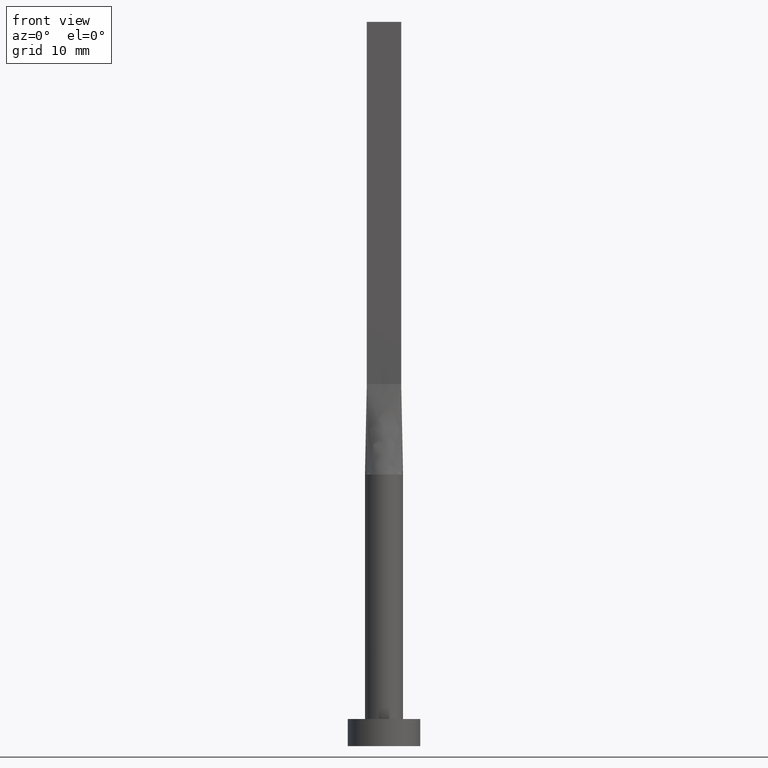
[diagram: clean part render]
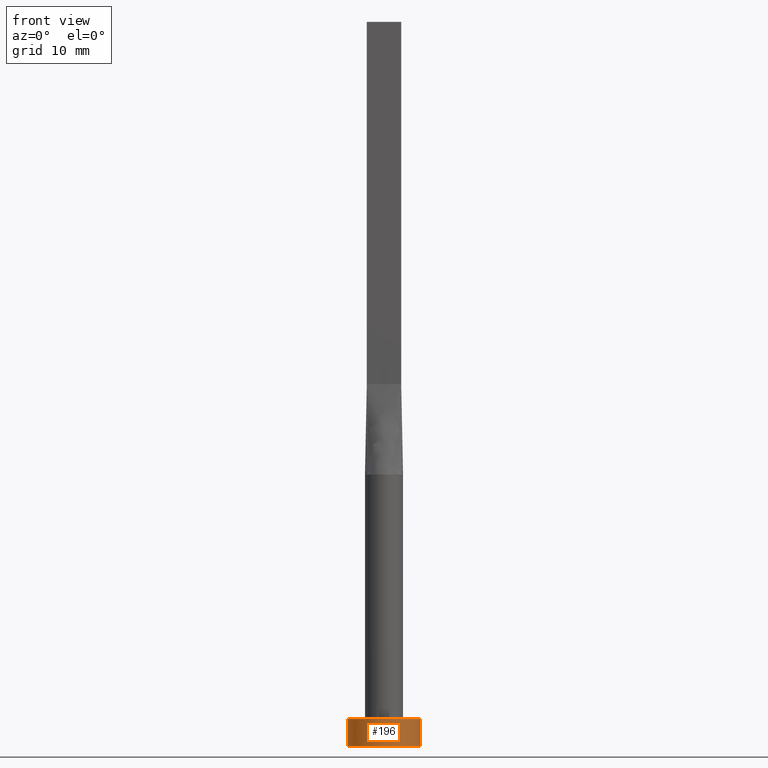
[diagram: same view with one face highlighted and labeled with its STEP entity id]
A machine part, front view. The second image highlights one B-rep face of the part: STEP entity #196.
In plain terms, the highlighted cylindrical surface (edge-blend (fillet) strip) has radius 4 mm, axis along (-0, -0, -1).
Its self-contained STEP definition (entity closure, byte-faithful):
#6 = VERTEX_POINT ( 'NONE', #305 ) ;
#17 = DIRECTION ( 'NONE',  ( -0.000000000000000000, -0.000000000000000000, -1.000000000000000000 ) ) ;
#32 = AXIS2_PLACEMENT_3D ( 'NONE', #410, #280, #337 ) ;
#36 = ORIENTED_EDGE ( 'NONE', *, *, #405, .F. ) ;
#49 = VERTEX_POINT ( 'NONE', #118 ) ;
#51 = CARTESIAN_POINT ( 'NONE',  ( -4.000000000000000000, 0.000000000000000000, 3.000000000000000000 ) ) ;
#52 = CIRCLE ( 'NONE', #375, 4.000000000000000000 ) ;
#87 = AXIS2_PLACEMENT_3D ( 'NONE', #411, #17, #194 ) ;
#91 = DIRECTION ( 'NONE',  ( -0.000000000000000000, -0.000000000000000000, -1.000000000000000000 ) ) ;
#118 = CARTESIAN_POINT ( 'NONE',  ( -4.000000000000000000, 0.000000000000000000, 3.000000000000000000 ) ) ;
#132 = ORIENTED_EDGE ( 'NONE', *, *, #311, .F. ) ;
#185 = EDGE_LOOP ( 'NONE', ( #132, #36, #225, #322 ) ) ;
#186 = CARTESIAN_POINT ( 'NONE',  ( -4.000000000000000000, 0.000000000000000000, 0.000000000000000000 ) ) ;
#191 = VERTEX_POINT ( 'NONE', #236 ) ;
#194 = DIRECTION ( 'NONE',  ( -1.000000000000000000, 0.000000000000000000, 0.000000000000000000 ) ) ;
#196 = ADVANCED_FACE ( 'NONE', ( #287 ), #244, .T. ) ;
#219 = VECTOR ( 'NONE', #91, 1000.000000000000000 ) ;
#225 = ORIENTED_EDGE ( 'NONE', *, *, #274, .T. ) ;
#236 = CARTESIAN_POINT ( 'NONE',  ( 4.000000000000000000, 4.898587196589412829E-16, 3.000000000000000000 ) ) ;
#244 = CYLINDRICAL_SURFACE ( 'NONE', #87, 4.000000000000000000 ) ;
#268 = CIRCLE ( 'NONE', #32, 4.000000000000000000 ) ;
#269 = LINE ( 'NONE', #535, #219 ) ;
#274 = EDGE_CURVE ( 'NONE', #49, #530, #490, .T. ) ;
#280 = DIRECTION ( 'NONE',  ( 0.000000000000000000, 0.000000000000000000, 1.000000000000000000 ) ) ;
#287 = FACE_OUTER_BOUND ( 'NONE', #185, .T. ) ;
#291 = VECTOR ( 'NONE', #487, 1000.000000000000000 ) ;
#295 = DIRECTION ( 'NONE',  ( 0.000000000000000000, 0.000000000000000000, 1.000000000000000000 ) ) ;
#305 = CARTESIAN_POINT ( 'NONE',  ( 4.000000000000000000, 4.898587196589412829E-16, 0.000000000000000000 ) ) ;
#311 = EDGE_CURVE ( 'NONE', #191, #6, #269, .T. ) ;
#322 = ORIENTED_EDGE ( 'NONE', *, *, #504, .T. ) ;
#337 = DIRECTION ( 'NONE',  ( 1.000000000000000000, 0.000000000000000000, 0.000000000000000000 ) ) ;
#371 = CARTESIAN_POINT ( 'NONE',  ( 0.000000000000000000, 0.000000000000000000, 3.000000000000000000 ) ) ;
#375 = AXIS2_PLACEMENT_3D ( 'NONE', #371, #295, #460 ) ;
#405 = EDGE_CURVE ( 'NONE', #49, #191, #52, .T. ) ;
#410 = CARTESIAN_POINT ( 'NONE',  ( 0.000000000000000000, 0.000000000000000000, 0.000000000000000000 ) ) ;
#411 = CARTESIAN_POINT ( 'NONE',  ( 0.000000000000000000, 0.000000000000000000, 3.000000000000000000 ) ) ;
#460 = DIRECTION ( 'NONE',  ( 1.000000000000000000, 0.000000000000000000, 0.000000000000000000 ) ) ;
#487 = DIRECTION ( 'NONE',  ( -0.000000000000000000, -0.000000000000000000, -1.000000000000000000 ) ) ;
#490 = LINE ( 'NONE', #51, #291 ) ;
#504 = EDGE_CURVE ( 'NONE', #530, #6, #268, .T. ) ;
#530 = VERTEX_POINT ( 'NONE', #186 ) ;
#535 = CARTESIAN_POINT ( 'NONE',  ( 4.000000000000000000, 4.898587196589412829E-16, 3.000000000000000000 ) ) ;